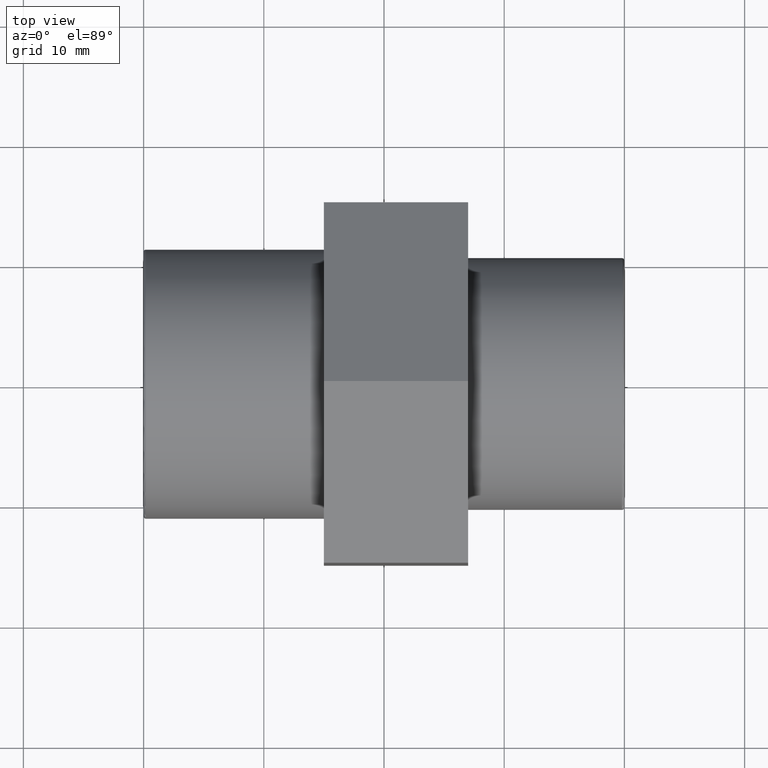
[diagram: clean part render]
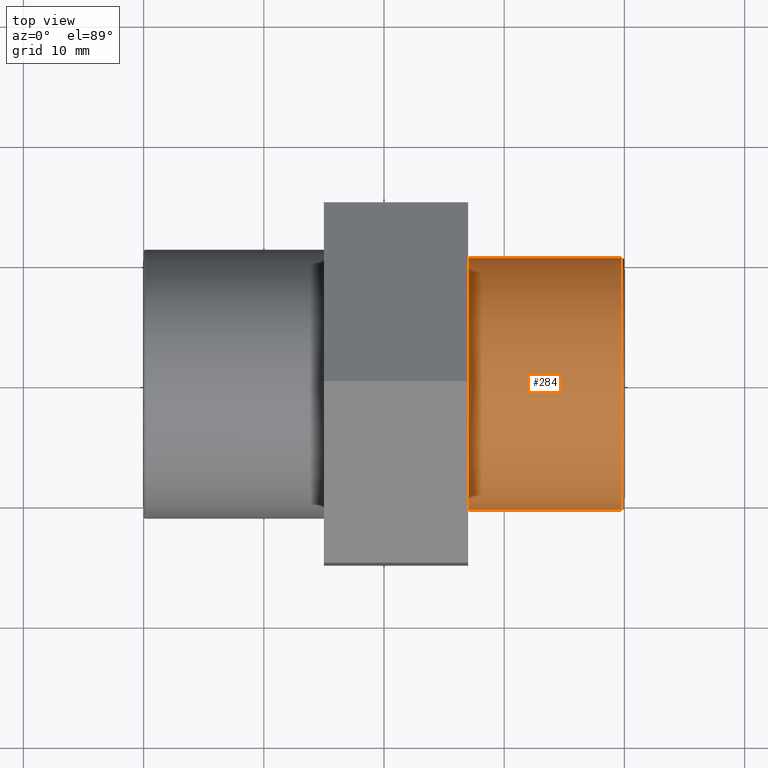
[diagram: same view with one face highlighted and labeled with its STEP entity id]
A machine part, top view. The second image highlights one B-rep face of the part: STEP entity #284.
In plain terms, the highlighted cylindrical surface (bore or boss wall) has radius 10.4775 mm, axis along (-1, -0, 0).
Its self-contained STEP definition (entity closure, byte-faithful):
#52=CYLINDRICAL_SURFACE('',#312,10.4775);
#72=FACE_BOUND('',#113,.T.);
#87=FACE_OUTER_BOUND('',#112,.T.);
#112=EDGE_LOOP('',(#220));
#113=EDGE_LOOP('',(#221));
#144=CIRCLE('',#311,10.4775);
#145=CIRCLE('',#313,10.4775);
#158=VERTEX_POINT('',#441);
#159=VERTEX_POINT('',#444);
#184=EDGE_CURVE('',#158,#158,#144,.T.);
#185=EDGE_CURVE('',#159,#159,#145,.T.);
#220=ORIENTED_EDGE('',*,*,#185,.F.);
#221=ORIENTED_EDGE('',*,*,#184,.F.);
#284=ADVANCED_FACE('',(#87,#72),#52,.T.);
#311=AXIS2_PLACEMENT_3D('',#442,#356,#357);
#312=AXIS2_PLACEMENT_3D('',#443,#358,#359);
#313=AXIS2_PLACEMENT_3D('',#445,#360,#361);
#356=DIRECTION('center_axis',(1.,1.83697019872103E-16,0.));
#357=DIRECTION('ref_axis',(-1.82123199577617E-16,1.,6.12323399573677E-17));
#358=DIRECTION('center_axis',(-1.,-1.83697019872103E-16,0.));
#359=DIRECTION('ref_axis',(1.48524819347847E-16,-1.,0.));
#360=DIRECTION('center_axis',(-1.,-1.83697019872103E-16,0.));
#361=DIRECTION('ref_axis',(0.,0.,1.));
#441=CARTESIAN_POINT('',(19.79045,-10.4775,-1.92468552570996E-15));
#442=CARTESIAN_POINT('Origin',(19.79045,7.30938708436992E-15,0.));
#443=CARTESIAN_POINT('Origin',(13.5,6.15385016571545E-15,0.));
#444=CARTESIAN_POINT('',(7.00000000000001,-10.4775,0.));
#445=CARTESIAN_POINT('Origin',(7.00000000000001,4.95981953654678E-15,0.));